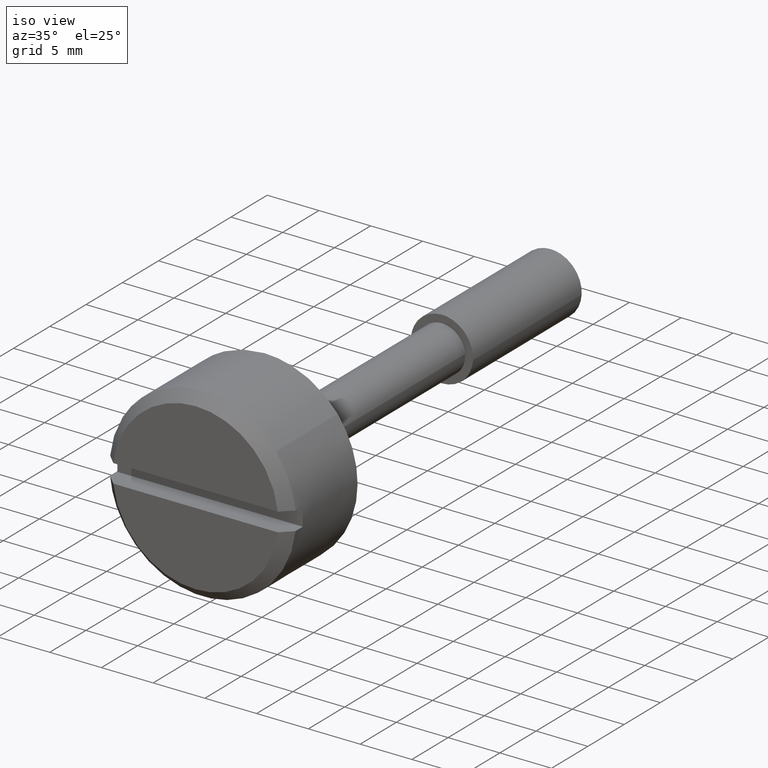
[diagram: clean part render]
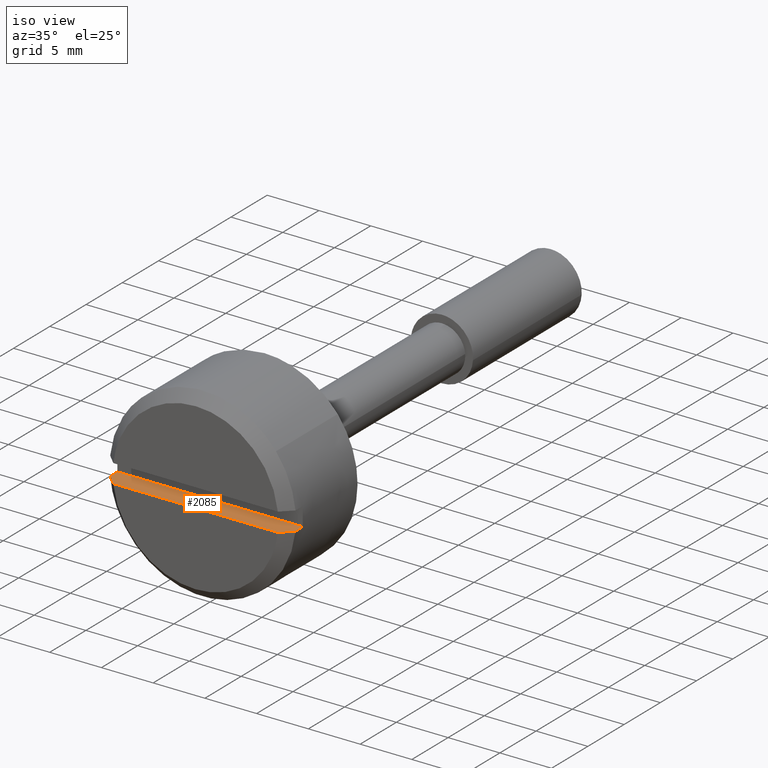
[diagram: same view with one face highlighted and labeled with its STEP entity id]
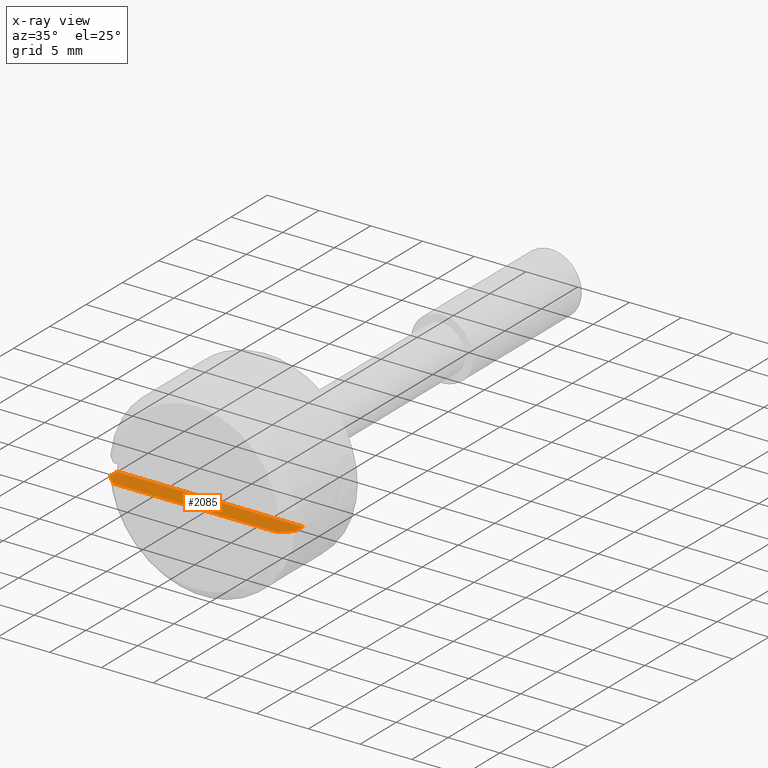
[diagram: x-ray of the same camera — body ghosted, the highlighted face saturated]
A machine part, iso view. The second image highlights one B-rep face of the part: STEP entity #2085.
The next image is the same camera in x-ray: the body ghosted, the highlighted face saturated — about 0% of this face is hidden behind the body in this view.
In plain terms, the highlighted face is a freeform B-spline surface patch.
Its self-contained STEP definition (entity closure, byte-faithful):
#1835=CARTESIAN_POINT('',(-10.0,-8.954886933959628,-0.900000000000000));
#1836=VERTEX_POINT('',#1835);
#1850=CARTESIAN_POINT('',(-10.999900000000000,-8.954886933959578,-0.900000000000000));
#1851=VERTEX_POINT('',#1850);
#1852=CARTESIAN_POINT('',(-10.0,-8.954886933959628,-0.900000000000000));
#1853=CARTESIAN_POINT('',(-10.999900000000000,-8.954886933959578,-0.900000000000000));
#1854=QUASI_UNIFORM_CURVE('',1,(#1852,#1853),.UNSPECIFIED.,.F.,.U.);
#1855=EDGE_CURVE('',#1836,#1851,#1854,.T.);
#1857=CARTESIAN_POINT('',(-10.999900000000000,8.954886933959578,-0.900000000000000));
#1858=VERTEX_POINT('',#1857);
#1874=CARTESIAN_POINT('',(-10.0,8.954886933959628,-0.900000000000000));
#1875=VERTEX_POINT('',#1874);
#1876=CARTESIAN_POINT('',(-10.999900000000000,8.954886933959578,-0.900000000000000));
#1877=CARTESIAN_POINT('',(-10.0,8.954886933959628,-0.900000000000000));
#1878=QUASI_UNIFORM_CURVE('',1,(#1876,#1877),.UNSPECIFIED.,.F.,.U.);
#1879=EDGE_CURVE('',#1858,#1875,#1878,.T.);
#2048=CARTESIAN_POINT('',(-12.099794869708390,-9.849480608322006,-0.900000000000000));
#2049=CARTESIAN_POINT('',(-9.900104951486613,-9.849480608322006,-0.900000000000000));
#2050=CARTESIAN_POINT('',(-12.099794869708390,9.849480608322004,-0.900000000000000));
#2051=CARTESIAN_POINT('',(-9.900104951486613,9.849480608322004,-0.900000000000000));
#2052=B_SPLINE_SURFACE_WITH_KNOTS('',1,1,((#2048,#2050),(#2049,#2051)),.UNSPECIFIED.,.F.,.F.,.U.,(2,2),(2,2),(0.0,2.199689918221781),(0.0,19.698961216644008),.UNSPECIFIED.);
#2053=CARTESIAN_POINT('',(-10.0,8.954886933959628,-0.900000000000000));
#2054=CARTESIAN_POINT('',(-10.0,-8.954886933959628,-0.900000000000000));
#2055=QUASI_UNIFORM_CURVE('',1,(#2053,#2054),.UNSPECIFIED.,.F.,.U.);
#2056=EDGE_CURVE('',#1875,#1836,#2055,.T.);
#2057=ORIENTED_EDGE('',*,*,#2056,.F.);
#2058=ORIENTED_EDGE('',*,*,#1879,.F.);
#2059=CARTESIAN_POINT('',(-11.999900000000000,7.949213797602840,-0.900000000000000));
#2060=VERTEX_POINT('',#2059);
#2061=CARTESIAN_POINT('',(-11.999900000000000,7.949213797602840,-0.900000000000000));
#2062=CARTESIAN_POINT('',(-11.666687995180000,8.284558379157989,-0.900000000000000));
#2063=CARTESIAN_POINT('',(-11.333336515864641,8.619764780328605,-0.900000000000000));
#2064=CARTESIAN_POINT('',(-10.999900000000000,8.954886933959578,-0.900000000000000));
#2065=B_SPLINE_CURVE_WITH_KNOTS('',3,(#2061,#2062,#2063,#2064),.UNSPECIFIED.,.F.,.U.,(4,4),(0.941397994252912,1.0),.UNSPECIFIED.);
#2066=EDGE_CURVE('',#2060,#1858,#2065,.T.);
#2067=ORIENTED_EDGE('',*,*,#2066,.F.);
#2068=CARTESIAN_POINT('',(-11.999900000000000,-7.949213797602840,-0.900000000000000));
#2069=VERTEX_POINT('',#2068);
#2070=CARTESIAN_POINT('',(-11.999900000000000,7.949213797602840,-0.900000000000000));
#2071=CARTESIAN_POINT('',(-11.999900000000000,-7.949213797602840,-0.900000000000000));
#2072=QUASI_UNIFORM_CURVE('',1,(#2070,#2071),.UNSPECIFIED.,.F.,.U.);
#2073=EDGE_CURVE('',#2060,#2069,#2072,.T.);
#2074=ORIENTED_EDGE('',*,*,#2073,.T.);
#2075=CARTESIAN_POINT('',(-10.999900000000000,-8.954886933959578,-0.900000000000000));
#2076=CARTESIAN_POINT('',(-11.333336230118860,-8.619764833145828,-0.900000000000000));
#2077=CARTESIAN_POINT('',(-11.666687782598601,-8.284558563938044,-0.900000000000000));
#2078=CARTESIAN_POINT('',(-11.999900000000000,-7.949213797602840,-0.900000000000000));
#2079=B_SPLINE_CURVE_WITH_KNOTS('',3,(#2075,#2076,#2077,#2078),.UNSPECIFIED.,.F.,.U.,(4,4),(0.0,0.058078857996080),.UNSPECIFIED.);
#2080=EDGE_CURVE('',#1851,#2069,#2079,.T.);
#2081=ORIENTED_EDGE('',*,*,#2080,.F.);
#2082=ORIENTED_EDGE('',*,*,#1855,.F.);
#2083=EDGE_LOOP('',(#2057,#2058,#2067,#2074,#2081,#2082));
#2084=FACE_OUTER_BOUND('',#2083,.T.);
#2085=ADVANCED_FACE('',(#2084),#2052,.T.);